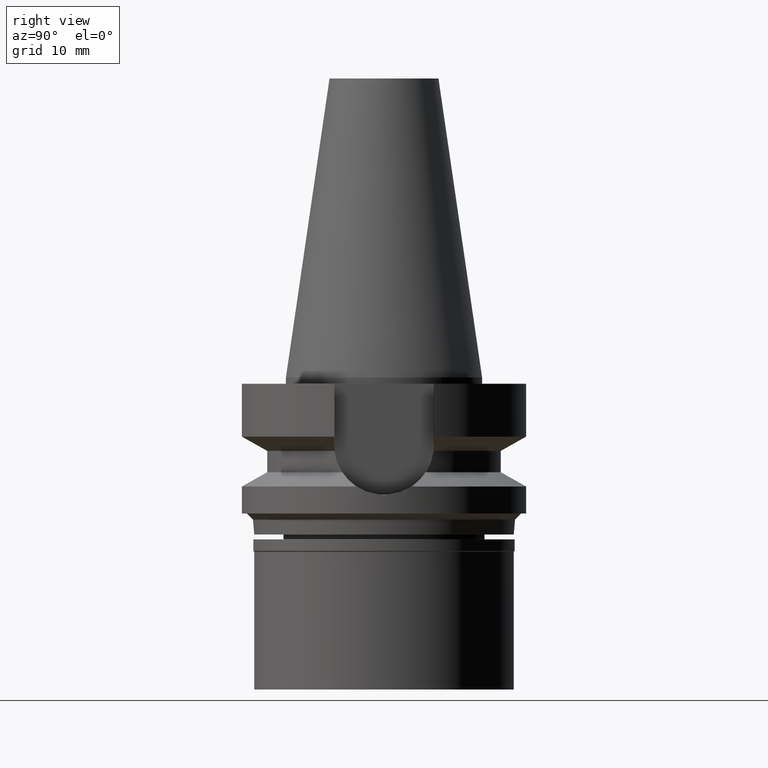
[diagram: clean part render]
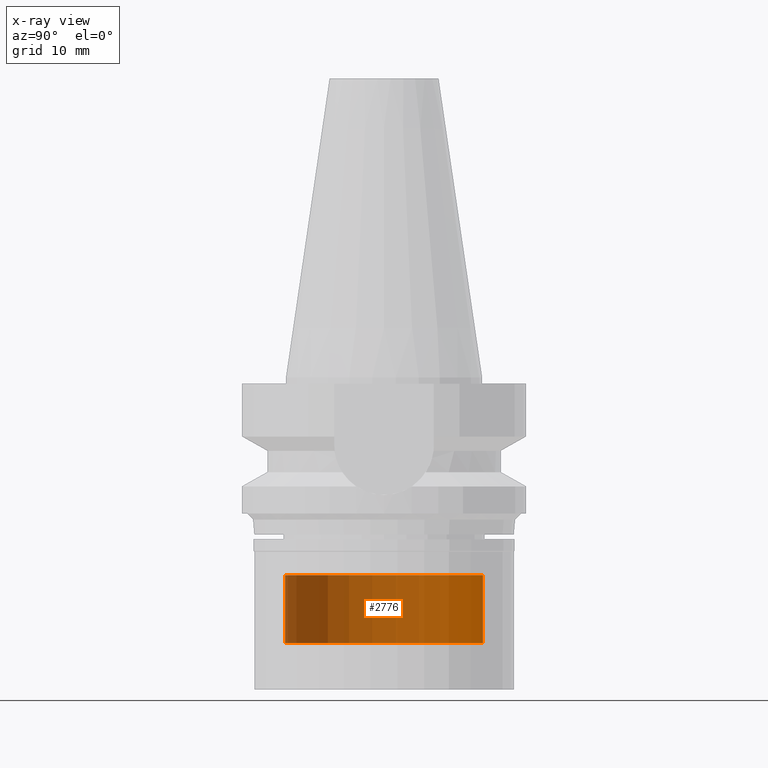
[diagram: x-ray — body ghosted, one internal face saturated and labeled with its STEP entity id]
A machine part, right view, then the same camera in x-ray: the body is ghosted and one INTERNAL B-rep face — a face not visible from any outside direction — is saturated and labeled: STEP entity #2776.
In plain terms, the highlighted cylindrical surface (partial cylindrical patch) has radius 16 mm, axis along (0, 0, -1).
Its self-contained STEP definition (entity closure, byte-faithful):
#26 = CARTESIAN_POINT ( 'NONE',  ( 0.0000000000000000000, 1.873342208656000186E-14, -43.00000000000000000 ) ) ;
#144 = AXIS2_PLACEMENT_3D ( 'NONE', #489, #793, #2955 ) ;
#154 = EDGE_CURVE ( 'NONE', #1860, #319, #1194, .T. ) ;
#192 = EDGE_CURVE ( 'NONE', #2945, #1386, #2937, .T. ) ;
#235 = CARTESIAN_POINT ( 'NONE',  ( 0.0000000000000000000, -16.00000000000000000, -32.00000000000000000 ) ) ;
#319 = VERTEX_POINT ( 'NONE', #1564 ) ;
#398 = AXIS2_PLACEMENT_3D ( 'NONE', #26, #1205, #1727 ) ;
#465 = LINE ( 'NONE', #235, #1340 ) ;
#489 = CARTESIAN_POINT ( 'NONE',  ( 0.0000000000000000000, 1.873342208656000186E-14, 52.97000000000000597 ) ) ;
#586 = EDGE_LOOP ( 'NONE', ( #1598, #1652, #2857, #1335 ) ) ;
#793 = DIRECTION ( 'NONE',  ( 0.0000000000000000000, 0.0000000000000000000, -1.000000000000000000 ) ) ;
#884 = DIRECTION ( 'NONE',  ( 0.0000000000000000000, 0.0000000000000000000, -1.000000000000000000 ) ) ;
#968 = DIRECTION ( 'NONE',  ( 0.0000000000000000000, 0.0000000000000000000, -1.000000000000000000 ) ) ;
#1056 = CARTESIAN_POINT ( 'NONE',  ( 0.0000000000000000000, 16.00000000000000000, -32.00000000000000000 ) ) ;
#1187 = DIRECTION ( 'NONE',  ( 0.0000000000000000000, 0.0000000000000000000, -1.000000000000000000 ) ) ;
#1194 = CIRCLE ( 'NONE', #398, 16.00000000000000000 ) ;
#1205 = DIRECTION ( 'NONE',  ( 0.0000000000000000000, 0.0000000000000000000, 1.000000000000000000 ) ) ;
#1335 = ORIENTED_EDGE ( 'NONE', *, *, #2574, .T. ) ;
#1340 = VECTOR ( 'NONE', #1187, 1000.000000000000000 ) ;
#1386 = VERTEX_POINT ( 'NONE', #1658 ) ;
#1558 = CARTESIAN_POINT ( 'NONE',  ( 0.0000000000000000000, 16.00000000000000000, -43.00000000000000000 ) ) ;
#1564 = CARTESIAN_POINT ( 'NONE',  ( 0.0000000000000000000, -16.00000000000000000, -43.00000000000000000 ) ) ;
#1598 = ORIENTED_EDGE ( 'NONE', *, *, #154, .T. ) ;
#1652 = ORIENTED_EDGE ( 'NONE', *, *, #1773, .F. ) ;
#1655 = CARTESIAN_POINT ( 'NONE',  ( 0.0000000000000000000, -16.00000000000000000, -32.00000000000000000 ) ) ;
#1658 = CARTESIAN_POINT ( 'NONE',  ( 0.0000000000000000000, 16.00000000000000000, -32.00000000000000000 ) ) ;
#1727 = DIRECTION ( 'NONE',  ( 0.0000000000000000000, 1.000000000000000000, 0.0000000000000000000 ) ) ;
#1773 = EDGE_CURVE ( 'NONE', #2945, #319, #465, .T. ) ;
#1838 = CYLINDRICAL_SURFACE ( 'NONE', #144, 16.00000000000000000 ) ;
#1860 = VERTEX_POINT ( 'NONE', #1558 ) ;
#1885 = FACE_OUTER_BOUND ( 'NONE', #586, .T. ) ;
#1959 = AXIS2_PLACEMENT_3D ( 'NONE', #2602, #968, #2199 ) ;
#2199 = DIRECTION ( 'NONE',  ( 0.0000000000000000000, -1.000000000000000000, 0.0000000000000000000 ) ) ;
#2252 = LINE ( 'NONE', #1056, #2444 ) ;
#2444 = VECTOR ( 'NONE', #884, 1000.000000000000000 ) ;
#2574 = EDGE_CURVE ( 'NONE', #1386, #1860, #2252, .T. ) ;
#2602 = CARTESIAN_POINT ( 'NONE',  ( 0.0000000000000000000, 1.873342208656000186E-14, -32.00000000000000000 ) ) ;
#2776 = ADVANCED_FACE ( 'NONE', ( #1885 ), #1838, .T. ) ;
#2857 = ORIENTED_EDGE ( 'NONE', *, *, #192, .T. ) ;
#2937 = CIRCLE ( 'NONE', #1959, 16.00000000000000000 ) ;
#2945 = VERTEX_POINT ( 'NONE', #1655 ) ;
#2955 = DIRECTION ( 'NONE',  ( 0.0000000000000000000, -1.000000000000000000, 0.0000000000000000000 ) ) ;